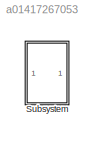
MODEL slx_a01417267053
KIND model
CONFIG AbsTol = auto
CONFIG EnableMultiTasking = off
CONFIG FixedStep = 2^-5
CONFIG MaxStep = auto
CONFIG MinStep = auto
CONFIG RelTol = 1e-3
CONFIG SampleTimeConstraint = Unconstrained
CONFIG Solver = ode4
CONFIG SolverName = ode4
CONFIG StartTime = 0.0
CONFIG StopTime = 100
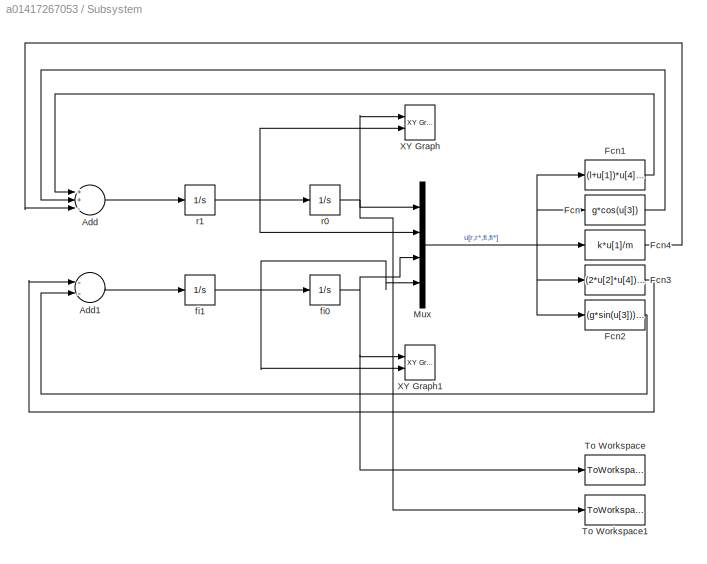
BLOCK [SubSystem] Subsystem
  Ports = []
  RequestExecContextInheritance = off
BLOCK [Sum] Subsystem/Add
  InputSameDT = off
  Inputs = ++-
  OutDataTypeStr = Inherit: Inherit via internal rule
  Ports = [3, 1]
  SaturateOnIntegerOverflow = off
BLOCK [Sum] Subsystem/Add1
  InputSameDT = off
  Inputs = --
  OutDataTypeStr = Inherit: Inherit via internal rule
  Ports = [2, 1]
  SaturateOnIntegerOverflow = off
BLOCK [Fcn] Subsystem/Fcn
  Expr = g*cos(u[3])
BLOCK [Fcn] Subsystem/Fcn1
  Expr = (l+u[1])*u[4]^2
BLOCK [Fcn] Subsystem/Fcn2
  Expr = (g*sin(u[3]))/(l+u[1])
BLOCK [Fcn] Subsystem/Fcn3
  Expr = (2*u[2]*u[4])/(l+u[1])
BLOCK [Fcn] Subsystem/Fcn4
  Expr = k*u[1]/m
BLOCK [Mux] Subsystem/Mux
  DisplayOption = bar
  Ports = [4, 1]
BLOCK [ToWorkspace] Subsystem/To Workspace
  FixptAsFi = on
  MaxDataPoints = inf
  Ports = [1]
  SampleTime = -1
  Save2DSignal = 3-D array (concatenate along third dimension)
  VariableName = fi
BLOCK [ToWorkspace] Subsystem/To Workspace1
  FixptAsFi = on
  MaxDataPoints = inf
  Ports = [1]
  SampleTime = -1
  Save2DSignal = 3-D array (concatenate along third dimension)
  VariableName = r
BLOCK [Reference] Subsystem/XY Graph  REF=simulink/Sinks/XY Graph
  Ports = [2]
  SourceBlock = simulink/Sinks/XY Graph
  SourceProductBaseCode = SL
  SourceProductName = Simulink
  SourceType = XY scope.
BLOCK [Reference] Subsystem/XY Graph1  REF=simulink/Sinks/XY Graph
  Ports = [2]
  SourceBlock = simulink/Sinks/XY Graph
  SourceProductBaseCode = SL
  SourceProductName = Simulink
  SourceType = XY scope.
BLOCK [Integrator] Subsystem/fi0
  InitialCondition = fi0
  Ports = [1, 1]
BLOCK [Integrator] Subsystem/fi1
  InitialCondition = fi1
  Ports = [1, 1]
BLOCK [Integrator] Subsystem/r0
  InitialCondition = r0
  Ports = [1, 1]
BLOCK [Integrator] Subsystem/r1
  InitialCondition = r1
  Ports = [1, 1]
LINE Subsystem/Add1:1 -> Subsystem/fi1:1
LINE Subsystem/Add:1 -> Subsystem/r1:1
LINE Subsystem/Fcn1:1 -> Subsystem/Add:1
LINE Subsystem/Fcn2:1 -> Subsystem/Add1:2
LINE Subsystem/Fcn3:1 -> Subsystem/Add1:1
LINE Subsystem/Fcn4:1 -> Subsystem/Add:3
LINE Subsystem/Fcn:1 -> Subsystem/Add:2
NET Subsystem/Mux:1 -> Subsystem/Fcn1:1, Subsystem/Fcn2:1, Subsystem/Fcn3:1, Subsystem/Fcn4:1, Subsystem/Fcn:1
NET Subsystem/fi0:1 -> Subsystem/Mux:3, Subsystem/To Workspace:1, Subsystem/XY Graph1:1
NET Subsystem/fi1:1 -> Subsystem/Mux:4, Subsystem/XY Graph1:2, Subsystem/fi0:1
NET Subsystem/r0:1 -> Subsystem/Mux:1, Subsystem/To Workspace1:1, Subsystem/XY Graph:1
NET Subsystem/r1:1 -> Subsystem/Mux:2, Subsystem/XY Graph:2, Subsystem/r0:1
note: NET lines group one-source signal fan-out (src -> all destinations, sorted); 1:1 wires keep LINE
